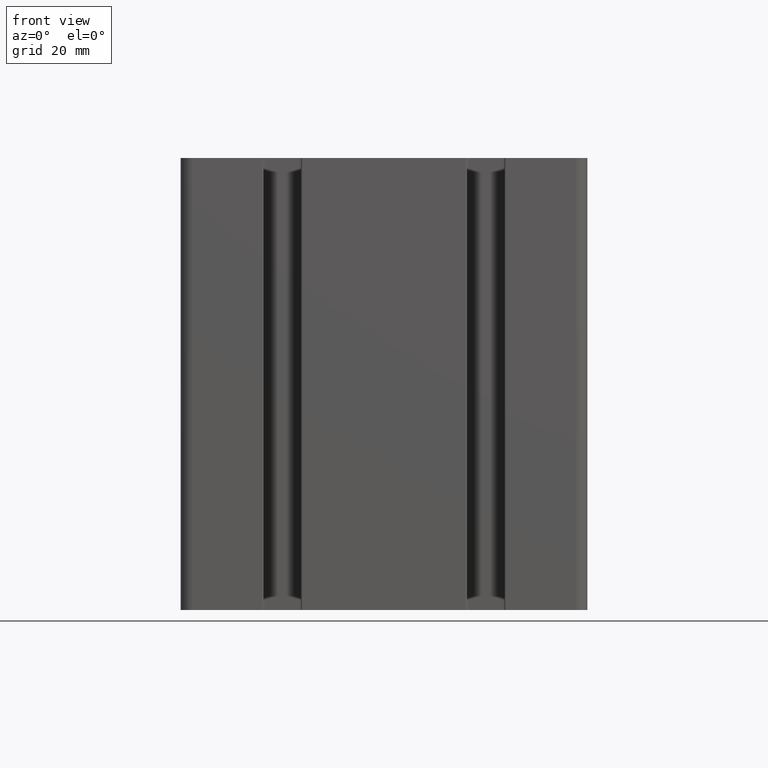
[diagram: clean part render]
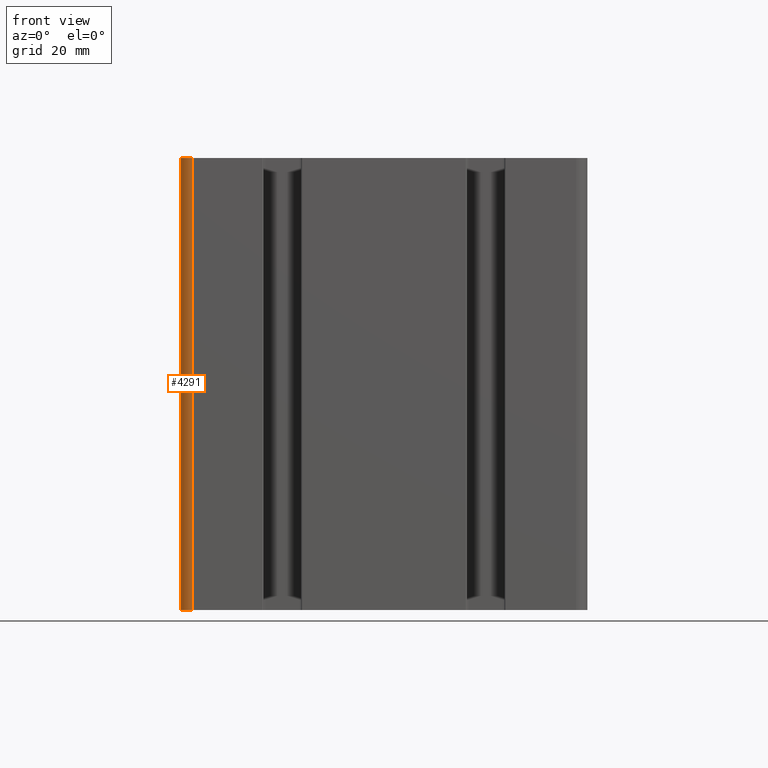
[diagram: same view with one face highlighted and labeled with its STEP entity id]
A machine part, front view. The second image highlights one B-rep face of the part: STEP entity #4291.
In plain terms, the highlighted cylindrical surface (edge-blend (fillet) strip) has radius 2.5 mm, axis along (0, 0, 1).
Its self-contained STEP definition (entity closure, byte-faithful):
#231=CIRCLE('',#4701,2.50000000000001);
#233=CIRCLE('',#4704,2.50000000000001);
#333=CYLINDRICAL_SURFACE('',#4703,2.50000000000001);
#543=FACE_OUTER_BOUND('',#770,.T.);
#770=EDGE_LOOP('',(#3731,#3732,#3733,#3734));
#1201=LINE('',#7202,#1633);
#1213=LINE('',#7230,#1645);
#1633=VECTOR('',#5919,100.);
#1645=VECTOR('',#5951,100.);
#2065=VERTEX_POINT('',#7199);
#2066=VERTEX_POINT('',#7201);
#2071=VERTEX_POINT('',#7223);
#2072=VERTEX_POINT('',#7228);
#2681=EDGE_CURVE('',#2065,#2066,#1201,.T.);
#2694=EDGE_CURVE('',#2071,#2066,#231,.T.);
#2697=EDGE_CURVE('',#2072,#2065,#233,.T.);
#2698=EDGE_CURVE('',#2072,#2071,#1213,.T.);
#3731=ORIENTED_EDGE('',*,*,#2694,.T.);
#3732=ORIENTED_EDGE('',*,*,#2681,.F.);
#3733=ORIENTED_EDGE('',*,*,#2697,.F.);
#3734=ORIENTED_EDGE('',*,*,#2698,.T.);
#4291=ADVANCED_FACE('',(#543),#333,.T.);
#4701=AXIS2_PLACEMENT_3D('',#7224,#5942,#5943);
#4703=AXIS2_PLACEMENT_3D('',#7227,#5947,#5948);
#4704=AXIS2_PLACEMENT_3D('',#7229,#5949,#5950);
#5919=DIRECTION('',(0.,0.,1.));
#5942=DIRECTION('center_axis',(0.,0.,-1.));
#5943=DIRECTION('ref_axis',(1.,0.,0.));
#5947=DIRECTION('center_axis',(0.,0.,1.));
#5948=DIRECTION('ref_axis',(1.,0.,0.));
#5949=DIRECTION('center_axis',(0.,0.,-1.));
#5950=DIRECTION('ref_axis',(1.,0.,0.));
#5951=DIRECTION('',(0.,0.,1.));
#7199=CARTESIAN_POINT('',(-45.,-42.5,0.));
#7201=CARTESIAN_POINT('',(-45.,-42.5,100.));
#7202=CARTESIAN_POINT('',(-45.,-42.5,0.));
#7223=CARTESIAN_POINT('',(-42.5,-45.,100.));
#7224=CARTESIAN_POINT('Origin',(-42.5,-42.5,100.));
#7227=CARTESIAN_POINT('Origin',(-42.5,-42.5,0.));
#7228=CARTESIAN_POINT('',(-42.5,-45.,0.));
#7229=CARTESIAN_POINT('Origin',(-42.5,-42.5,0.));
#7230=CARTESIAN_POINT('',(-42.5,-45.,0.));